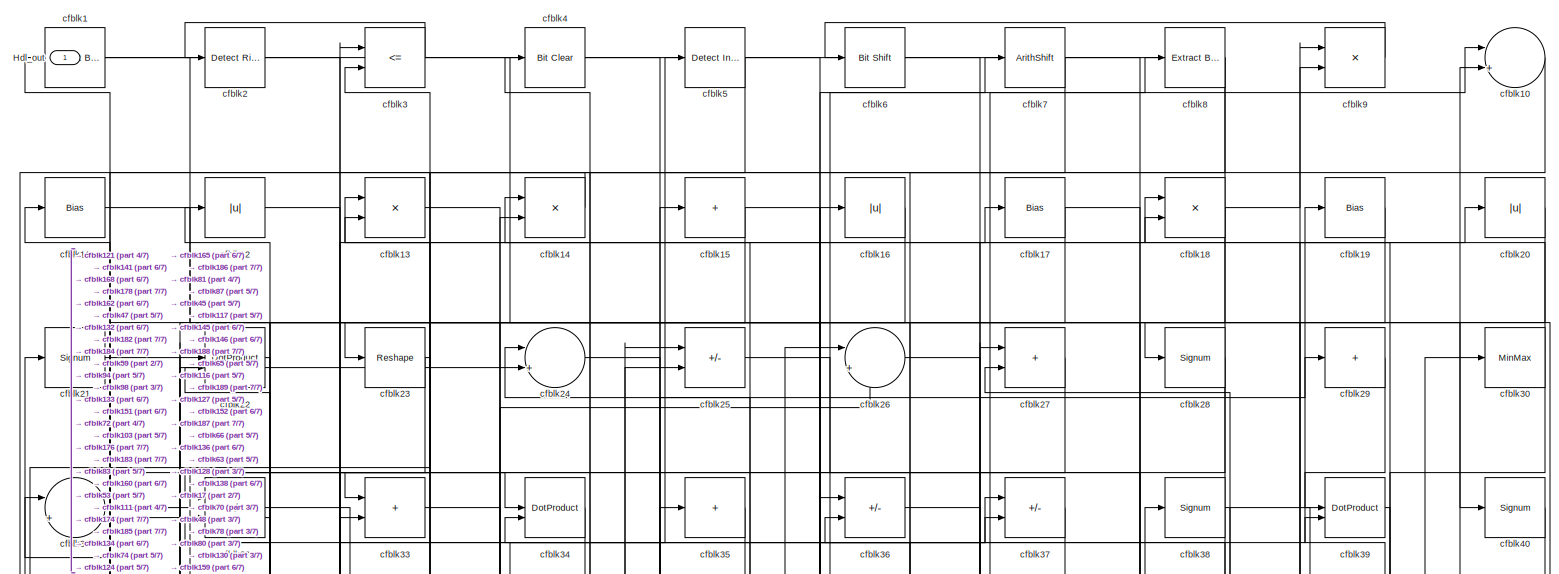
[diagram: root canvas - part 1/7, full width, top band]
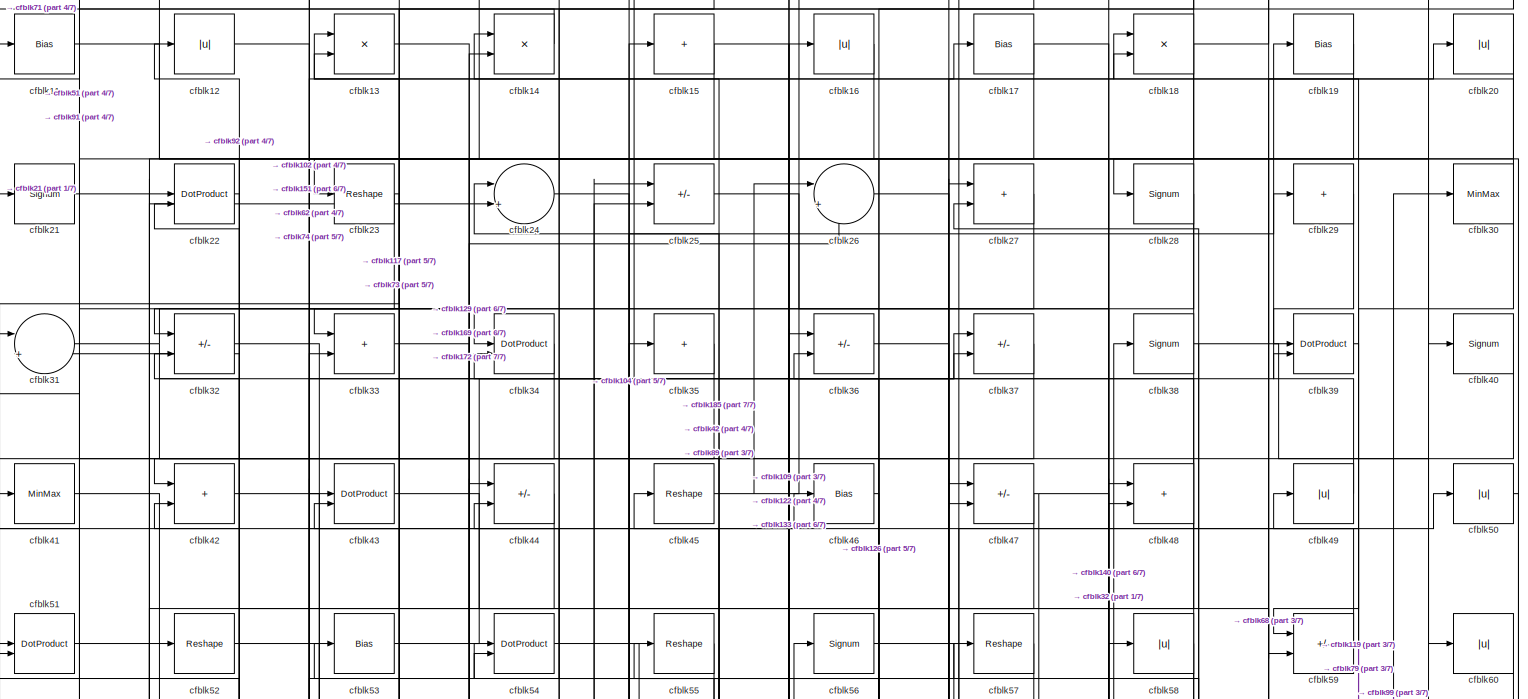
[diagram: root canvas - part 2/7, full width, top band]
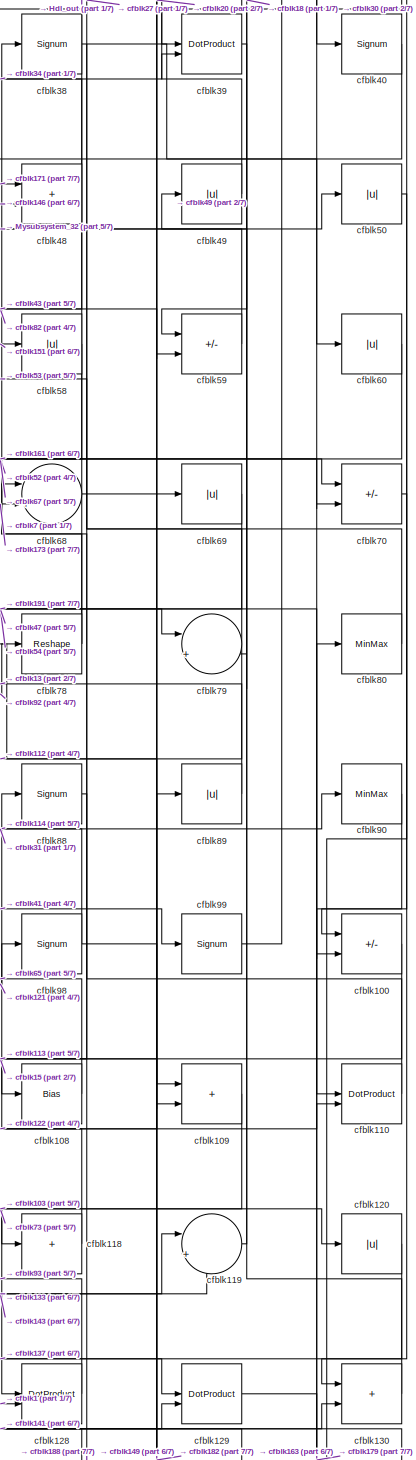
[diagram: root canvas - part 3/7, middle right region]
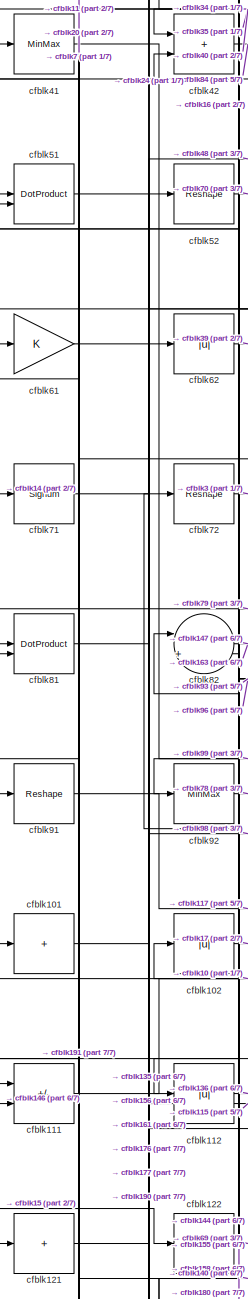
[diagram: root canvas - part 4/7, middle left region]
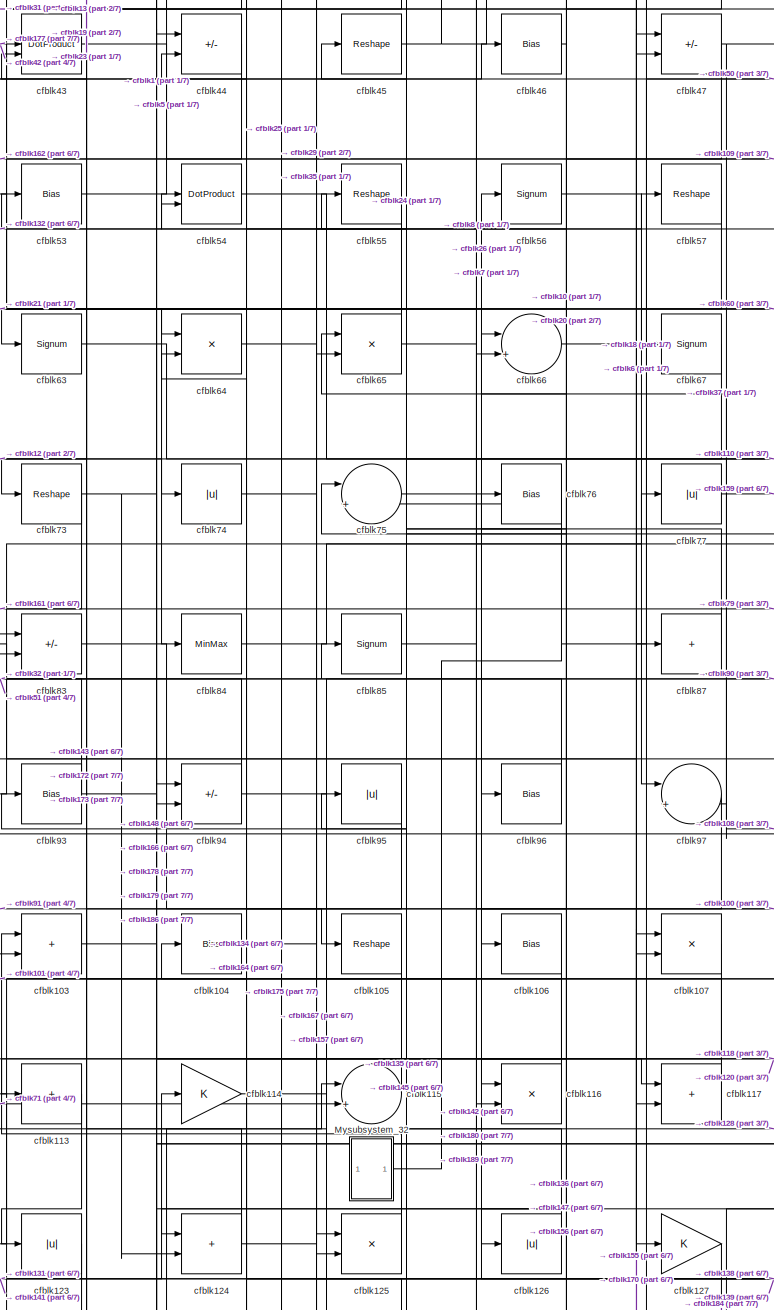
[diagram: root canvas - part 5/7, central region]
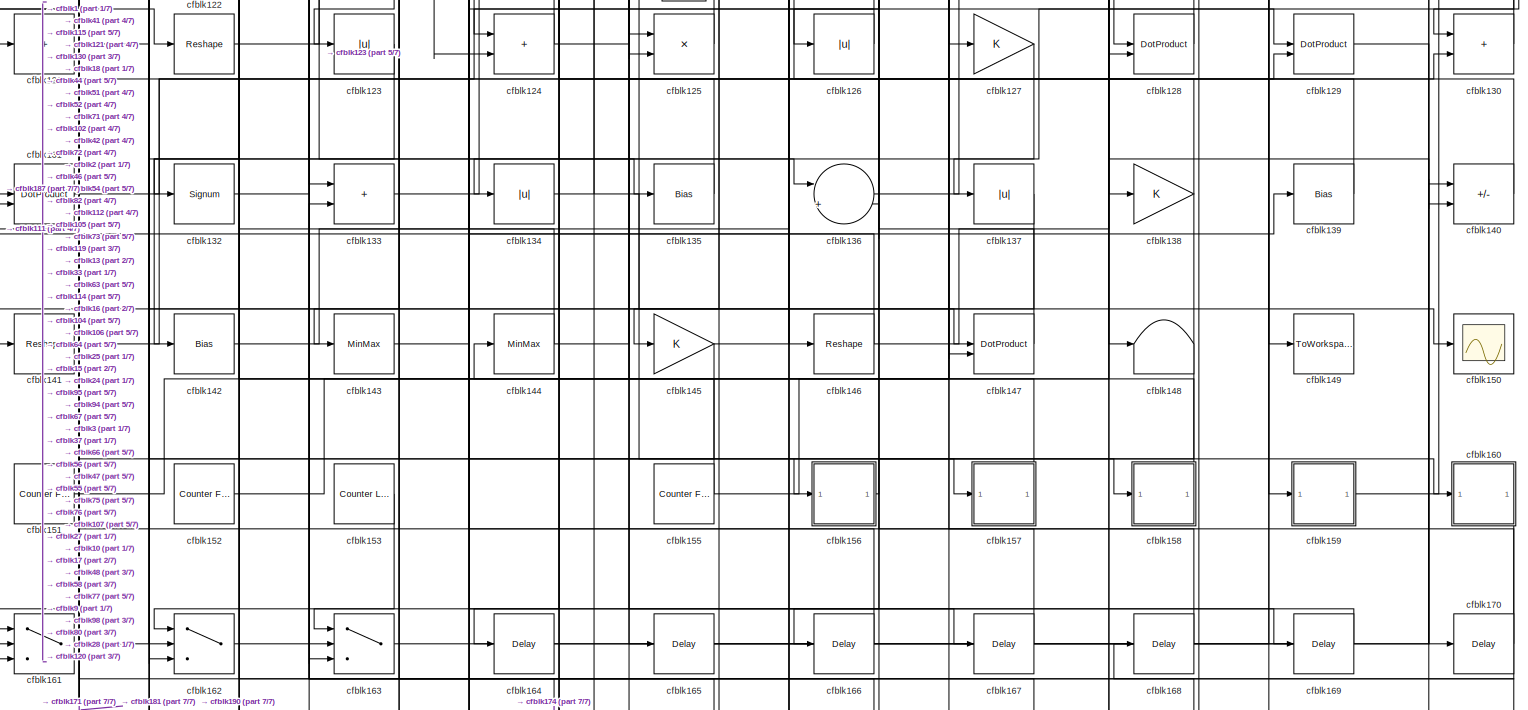
[diagram: root canvas - part 6/7, full width, bottom band]
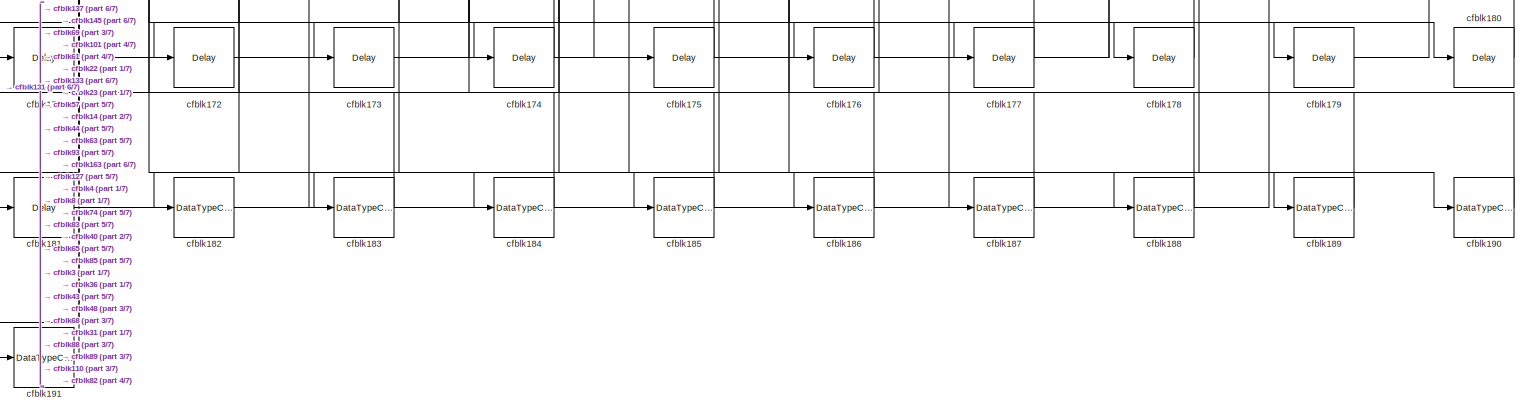
[diagram: root canvas - part 7/7, full width, bottom band]
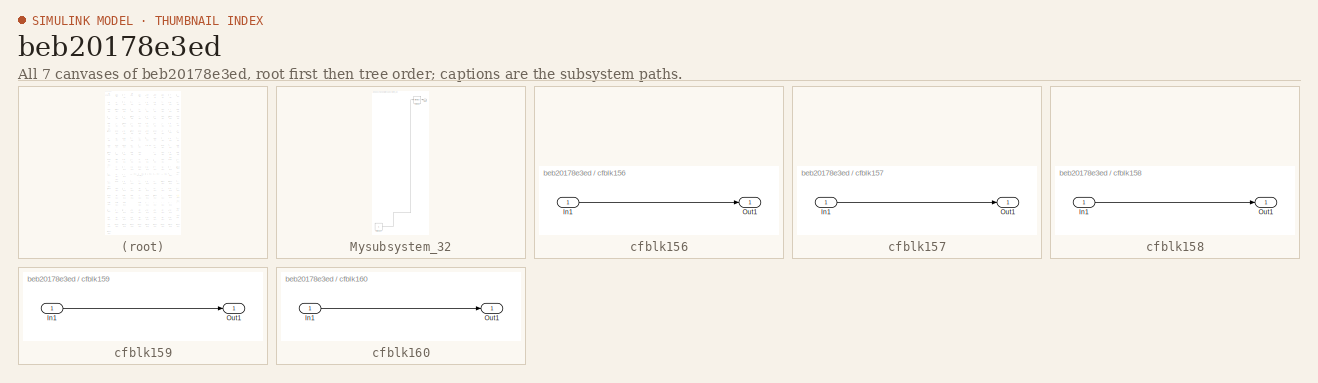
[diagram: thumbnail index - all 7 canvases of the model, root first then tree order]
MODEL slx_beb20178e3ed
KIND model
CONFIG AbsTol = auto
CONFIG EnableMultiTasking = off
CONFIG FixedStep = auto
CONFIG MaxStep = auto
CONFIG MinStep = auto
CONFIG RelTol = 1e-3
CONFIG SampleTimeConstraint = Unconstrained
CONFIG SolverName = VariableStepAuto
CONFIG StartTime = 0.0
CONFIG StopTime = 10.0
BLOCK [Outport] Hdl_out
  OutDataTypeStr = uint8
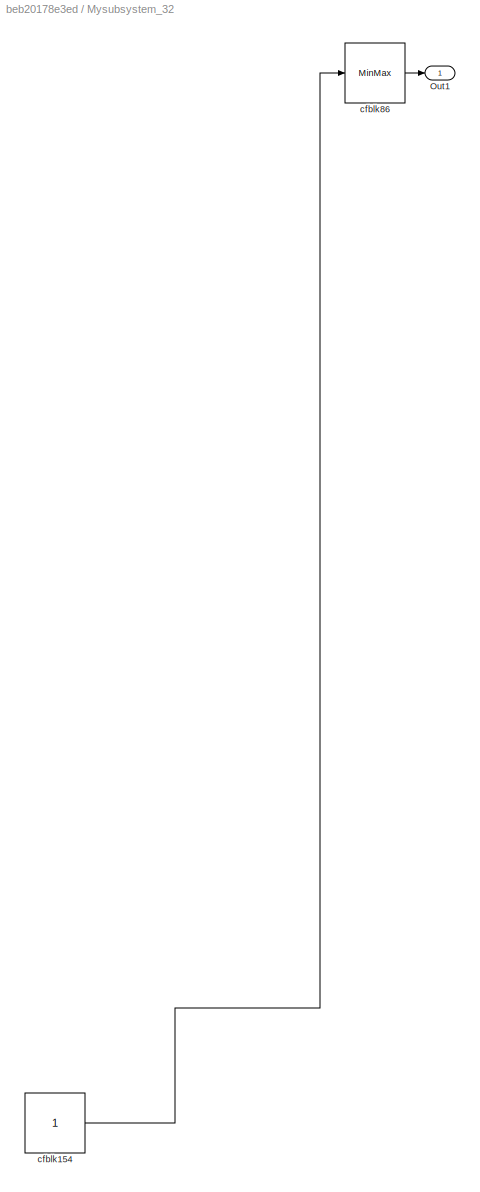
BLOCK [SubSystem] Mysubsystem_32
  RTWFcnName = Mysubsystem_32
  RTWFcnNameOpts = User specified
  RTWFileNameOpts = Use function name
  RTWSystemCode = Reusable function
  TreatAsAtomicUnit = on
BLOCK [Outport] Mysubsystem_32/Out1
BLOCK [Constant] Mysubsystem_32/cfblk154
  SampleTime = -1
BLOCK [MinMax] Mysubsystem_32/cfblk86
BLOCK [Reference] cfblk1  REF=simulink/Logic and Bit
Operations/Extract Bits
  LibrarySourceBlock = hdlsllib/Logic and Bit\nOperations/Extract Bits
  SourceBlock = simulink/Logic and Bit\nOperations/Extract Bits
  SourceType = Extract Bits
BLOCK [Sum] cfblk10
  Inputs = |++
  OutDataTypeStr = uint8
BLOCK [Sum] cfblk100
  IconShape = rectangular
  Inputs = +-
  OutDataTypeStr = uint8
BLOCK [Sum] cfblk101
  IconShape = rectangular
  Inputs = +
  OutDataTypeStr = uint8
BLOCK [Abs] cfblk102
  OutDataTypeStr = uint8
  SaturateOnIntegerOverflow = off
BLOCK [Sum] cfblk103
  IconShape = rectangular
  OutDataTypeStr = uint8
BLOCK [Bias] cfblk104
  Bias = 0.0
  SaturateOnIntegerOverflow = off
BLOCK [Reshape] cfblk105
BLOCK [Bias] cfblk106
  Bias = 0.0
  SaturateOnIntegerOverflow = off
BLOCK [Product] cfblk107
  Inputs = */
  OutDataTypeStr = uint8
  RndMeth = Zero
  SaturateOnIntegerOverflow = on
BLOCK [Bias] cfblk108
  Bias = 0.0
  SaturateOnIntegerOverflow = off
BLOCK [Sum] cfblk109
  IconShape = rectangular
  OutDataTypeStr = uint8
BLOCK [Bias] cfblk11
  Bias = 0.0
  SaturateOnIntegerOverflow = off
BLOCK [DotProduct] cfblk110
  OutDataTypeStr = uint8
BLOCK [Sum] cfblk111
  IconShape = rectangular
  Inputs = +-
  OutDataTypeStr = uint8
BLOCK [Abs] cfblk112
  OutDataTypeStr = uint8
  SaturateOnIntegerOverflow = off
BLOCK [Sum] cfblk113
  IconShape = rectangular
  Inputs = +
  OutDataTypeStr = uint8
BLOCK [Gain] cfblk114
  OutDataTypeStr = uint8
BLOCK [Sum] cfblk115
  Inputs = |++
  OutDataTypeStr = uint8
BLOCK [Product] cfblk116
  Inputs = */
  OutDataTypeStr = uint8
  RndMeth = Zero
  SaturateOnIntegerOverflow = on
BLOCK [Sum] cfblk117
  IconShape = rectangular
  OutDataTypeStr = uint8
BLOCK [Sum] cfblk118
  IconShape = rectangular
  Inputs = +
  OutDataTypeStr = uint8
BLOCK [Sum] cfblk119
  Inputs = |++
  OutDataTypeStr = uint8
BLOCK [Abs] cfblk12
  OutDataTypeStr = uint8
  SaturateOnIntegerOverflow = off
BLOCK [Abs] cfblk120
  OutDataTypeStr = uint8
  SaturateOnIntegerOverflow = off
BLOCK [Sum] cfblk121
  IconShape = rectangular
  Inputs = +
  OutDataTypeStr = uint8
BLOCK [Reshape] cfblk122
BLOCK [Abs] cfblk123
  OutDataTypeStr = uint8
  SaturateOnIntegerOverflow = off
BLOCK [Sum] cfblk124
  IconShape = rectangular
  OutDataTypeStr = uint8
BLOCK [Product] cfblk125
  Inputs = */
  OutDataTypeStr = uint8
  RndMeth = Zero
  SaturateOnIntegerOverflow = on
BLOCK [Abs] cfblk126
  OutDataTypeStr = uint8
  SaturateOnIntegerOverflow = off
BLOCK [Gain] cfblk127
  OutDataTypeStr = uint8
BLOCK [DotProduct] cfblk128
  OutDataTypeStr = uint8
BLOCK [DotProduct] cfblk129
  OutDataTypeStr = uint8
BLOCK [Product] cfblk13
  Inputs = */
  OutDataTypeStr = uint8
  RndMeth = Zero
  SaturateOnIntegerOverflow = on
BLOCK [Sum] cfblk130
  IconShape = rectangular
  OutDataTypeStr = uint8
BLOCK [DotProduct] cfblk131
  OutDataTypeStr = uint8
BLOCK [Signum] cfblk132
BLOCK [Sum] cfblk133
  IconShape = rectangular
  OutDataTypeStr = uint8
BLOCK [Abs] cfblk134
  OutDataTypeStr = uint8
  SaturateOnIntegerOverflow = off
BLOCK [Bias] cfblk135
  Bias = 0.0
  SaturateOnIntegerOverflow = off
BLOCK [Sum] cfblk136
  Inputs = |++
  OutDataTypeStr = uint8
BLOCK [Abs] cfblk137
  OutDataTypeStr = uint8
  SaturateOnIntegerOverflow = off
BLOCK [Gain] cfblk138
  OutDataTypeStr = uint8
BLOCK [Bias] cfblk139
  Bias = 0.0
  SaturateOnIntegerOverflow = off
BLOCK [Product] cfblk14
  Inputs = */
  OutDataTypeStr = uint8
  RndMeth = Zero
  SaturateOnIntegerOverflow = on
BLOCK [Sum] cfblk140
  IconShape = rectangular
  Inputs = +-
  OutDataTypeStr = uint8
BLOCK [Reshape] cfblk141
BLOCK [Bias] cfblk142
  Bias = 0.0
  SaturateOnIntegerOverflow = off
BLOCK [MinMax] cfblk143
  OutDataTypeStr = uint8
BLOCK [MinMax] cfblk144
  OutDataTypeStr = uint8
BLOCK [Gain] cfblk145
  OutDataTypeStr = uint8
BLOCK [Reshape] cfblk146
BLOCK [DotProduct] cfblk147
  OutDataTypeStr = uint8
BLOCK [Terminator] cfblk148
BLOCK [ToWorkspace] cfblk149
  MaxDataPoints = inf
  SampleTime = -1
  SaveFormat = Timeseries
  VariableName = simout
BLOCK [Sum] cfblk15
  IconShape = rectangular
  Inputs = +
  OutDataTypeStr = uint8
BLOCK [Scope] cfblk150
  Floating = off
  NumInputPorts = 1
  ScopeSpecificationString = Simulink.scopes.TimeScopeBlockCfg('CurrentConfiguration', extmgr.ConfigurationSet(extmgr.Configuration('Core','General UI',true),extmgr.Configuration('Core','Source UI',true),extmgr.Configuration('Sources','WiredSimulink',true,'DataLoggingVariableName','ScopeData2','DataLoggingSaveFormat','Array','DataLoggingLimitDataPoints',true,'DataLoggingDecimation','1'),extmgr.Configuration('Visuals','Time Do...<+868ch>
BLOCK [Reference] cfblk151  REF=hdlsllib/Sources/Counter
Free-Running
  SourceBlock = hdlsllib/Sources/Counter\nFree-Running
  SourceType = Counter Free-Running
BLOCK [Reference] cfblk152  REF=hdlsllib/Sources/Counter
Free-Running
  SourceBlock = hdlsllib/Sources/Counter\nFree-Running
  SourceType = Counter Free-Running
BLOCK [Reference] cfblk153  REF=hdlsllib/Sources/Counter
Limited
  SourceBlock = hdlsllib/Sources/Counter\nLimited
  SourceType = Counter Limited
BLOCK [Reference] cfblk155  REF=hdlsllib/Sources/Counter
Free-Running
  SourceBlock = hdlsllib/Sources/Counter\nFree-Running
  SourceType = Counter Free-Running
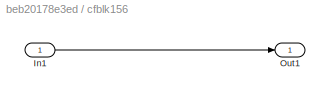
BLOCK [SubSystem] cfblk156
  LibrarySourceBlock = hdlsllib/Ports &\nSubsystems/Subsystem
BLOCK [Inport] cfblk156/In1
BLOCK [Outport] cfblk156/Out1
BLOCK [SubSystem] cfblk157
  LibrarySourceBlock = hdlsllib/Ports &\nSubsystems/Subsystem
BLOCK [Inport] cfblk157/In1
BLOCK [Outport] cfblk157/Out1
BLOCK [SubSystem] cfblk158
  LibrarySourceBlock = hdlsllib/Ports &\nSubsystems/Subsystem
BLOCK [Inport] cfblk158/In1
BLOCK [Outport] cfblk158/Out1
BLOCK [SubSystem] cfblk159
  LibrarySourceBlock = hdlsllib/Ports &\nSubsystems/Subsystem
BLOCK [Inport] cfblk159/In1
BLOCK [Outport] cfblk159/Out1
BLOCK [Abs] cfblk16
  OutDataTypeStr = uint8
  SaturateOnIntegerOverflow = off
BLOCK [SubSystem] cfblk160
  LibrarySourceBlock = hdlsllib/Ports &\nSubsystems/Subsystem
BLOCK [Inport] cfblk160/In1
BLOCK [Outport] cfblk160/Out1
BLOCK [Switch] cfblk161
  InputSameDT = off
  OutDataTypeStr = uint8
  SaturateOnIntegerOverflow = off
BLOCK [Switch] cfblk162
  InputSameDT = off
  OutDataTypeStr = uint8
  SaturateOnIntegerOverflow = off
BLOCK [Switch] cfblk163
  InputSameDT = off
  OutDataTypeStr = uint8
  SaturateOnIntegerOverflow = off
BLOCK [Delay] cfblk164
  InputPortMap = u0
  SampleTime = 1
BLOCK [Delay] cfblk165
  InputPortMap = u0
  SampleTime = 1
BLOCK [Delay] cfblk166
  InputPortMap = u0
  SampleTime = 1
BLOCK [Delay] cfblk167
  InputPortMap = u0
  SampleTime = 1
BLOCK [Delay] cfblk168
  InputPortMap = u0
  SampleTime = 1
BLOCK [Delay] cfblk169
  InputPortMap = u0
  SampleTime = 1
BLOCK [Bias] cfblk17
  Bias = 0.0
  SaturateOnIntegerOverflow = off
BLOCK [Delay] cfblk170
  InputPortMap = u0
  SampleTime = 1
BLOCK [Delay] cfblk171
  InputPortMap = u0
  SampleTime = 1
BLOCK [Delay] cfblk172
  InputPortMap = u0
  SampleTime = 1
BLOCK [Delay] cfblk173
  InputPortMap = u0
  SampleTime = 1
BLOCK [Delay] cfblk174
  InputPortMap = u0
  SampleTime = 1
BLOCK [Delay] cfblk175
  InputPortMap = u0
  SampleTime = 1
BLOCK [Delay] cfblk176
  InputPortMap = u0
  SampleTime = 1
BLOCK [Delay] cfblk177
  InputPortMap = u0
  SampleTime = 1
BLOCK [Delay] cfblk178
  InputPortMap = u0
  SampleTime = 1
BLOCK [Delay] cfblk179
  InputPortMap = u0
  SampleTime = 1
BLOCK [Product] cfblk18
  Inputs = */
  OutDataTypeStr = uint8
  RndMeth = Zero
  SaturateOnIntegerOverflow = on
BLOCK [Delay] cfblk180
  InputPortMap = u0
  SampleTime = 1
BLOCK [Delay] cfblk181
  InputPortMap = u0
  SampleTime = 1
BLOCK [DataTypeConversion] cfblk182
  OutDataTypeStr = uint8
  RndMeth = Floor
  SaturateOnIntegerOverflow = off
BLOCK [DataTypeConversion] cfblk183
  OutDataTypeStr = uint8
  RndMeth = Floor
  SaturateOnIntegerOverflow = off
BLOCK [DataTypeConversion] cfblk184
  OutDataTypeStr = uint8
  RndMeth = Floor
  SaturateOnIntegerOverflow = off
BLOCK [DataTypeConversion] cfblk185
  OutDataTypeStr = uint8
  RndMeth = Floor
  SaturateOnIntegerOverflow = off
BLOCK [DataTypeConversion] cfblk186
  OutDataTypeStr = uint8
  RndMeth = Floor
  SaturateOnIntegerOverflow = off
BLOCK [DataTypeConversion] cfblk187
  OutDataTypeStr = uint8
  RndMeth = Floor
  SaturateOnIntegerOverflow = off
BLOCK [DataTypeConversion] cfblk188
  OutDataTypeStr = uint8
  RndMeth = Floor
  SaturateOnIntegerOverflow = off
BLOCK [DataTypeConversion] cfblk189
  OutDataTypeStr = uint8
  RndMeth = Floor
  SaturateOnIntegerOverflow = off
BLOCK [Bias] cfblk19
  Bias = 0.0
  SaturateOnIntegerOverflow = off
BLOCK [DataTypeConversion] cfblk190
  OutDataTypeStr = uint8
  RndMeth = Floor
  SaturateOnIntegerOverflow = off
BLOCK [DataTypeConversion] cfblk191
  OutDataTypeStr = uint8
  RndMeth = Floor
  SaturateOnIntegerOverflow = off
BLOCK [Reference] cfblk2  REF=hdlsllib/Logic and Bit
Operations/Detect Rise
Nonnegative
  SourceBlock = hdlsllib/Logic and Bit\nOperations/Detect Rise\nNonnegative
  SourceType = Detect Rise Nonnegative
BLOCK [Abs] cfblk20
  OutDataTypeStr = uint8
  SaturateOnIntegerOverflow = off
BLOCK [Signum] cfblk21
BLOCK [DotProduct] cfblk22
  OutDataTypeStr = uint8
BLOCK [Reshape] cfblk23
BLOCK [Sum] cfblk24
  Inputs = |++
  OutDataTypeStr = uint8
BLOCK [Sum] cfblk25
  IconShape = rectangular
  Inputs = +-
  OutDataTypeStr = uint8
BLOCK [Sum] cfblk26
  Inputs = |++
  OutDataTypeStr = uint8
BLOCK [Sum] cfblk27
  IconShape = rectangular
  OutDataTypeStr = uint8
BLOCK [Signum] cfblk28
BLOCK [Sum] cfblk29
  IconShape = rectangular
  Inputs = +
  OutDataTypeStr = uint8
BLOCK [RelationalOperator] cfblk3
  InputSameDT = off
  Operator = <=
  OutDataTypeStr = boolean
BLOCK [MinMax] cfblk30
  OutDataTypeStr = uint8
BLOCK [Sum] cfblk31
  Inputs = |++
  OutDataTypeStr = uint8
BLOCK [Sum] cfblk32
  IconShape = rectangular
  Inputs = +-
  OutDataTypeStr = uint8
BLOCK [Sum] cfblk33
  IconShape = rectangular
  OutDataTypeStr = uint8
BLOCK [DotProduct] cfblk34
  OutDataTypeStr = uint8
BLOCK [Sum] cfblk35
  IconShape = rectangular
  Inputs = +
  OutDataTypeStr = uint8
BLOCK [Sum] cfblk36
  IconShape = rectangular
  Inputs = +-
  OutDataTypeStr = uint8
BLOCK [Sum] cfblk37
  IconShape = rectangular
  Inputs = +-
  OutDataTypeStr = uint8
BLOCK [Signum] cfblk38
BLOCK [DotProduct] cfblk39
  OutDataTypeStr = uint8
BLOCK [Reference] cfblk4  REF=simulink/Logic and Bit
Operations/Bit Clear
  LibrarySourceBlock = hdlsllib/Logic and Bit\nOperations/Bit Clear
  SourceBlock = simulink/Logic and Bit\nOperations/Bit Clear
  SourceType = Bit Clear
BLOCK [Signum] cfblk40
BLOCK [MinMax] cfblk41
  OutDataTypeStr = uint8
BLOCK [Sum] cfblk42
  IconShape = rectangular
  OutDataTypeStr = uint8
BLOCK [DotProduct] cfblk43
  OutDataTypeStr = uint8
BLOCK [Sum] cfblk44
  IconShape = rectangular
  Inputs = +-
  OutDataTypeStr = uint8
BLOCK [Reshape] cfblk45
BLOCK [Bias] cfblk46
  Bias = 0.0
  SaturateOnIntegerOverflow = off
BLOCK [Sum] cfblk47
  IconShape = rectangular
  Inputs = +-
  OutDataTypeStr = uint8
BLOCK [Sum] cfblk48
  IconShape = rectangular
  OutDataTypeStr = uint8
BLOCK [Abs] cfblk49
  OutDataTypeStr = uint8
  SaturateOnIntegerOverflow = off
BLOCK [Reference] cfblk5  REF=simulink/Logic and Bit
Operations/Detect
Increase
  LibrarySourceBlock = hdlsllib/Logic and Bit\nOperations/Detect\nIncrease
  SourceBlock = simulink/Logic and Bit\nOperations/Detect\nIncrease
  SourceType = Detect Increase
BLOCK [Abs] cfblk50
  OutDataTypeStr = uint8
  SaturateOnIntegerOverflow = off
BLOCK [DotProduct] cfblk51
  OutDataTypeStr = uint8
BLOCK [Reshape] cfblk52
BLOCK [Bias] cfblk53
  Bias = 0.0
  SaturateOnIntegerOverflow = off
BLOCK [DotProduct] cfblk54
  OutDataTypeStr = uint8
BLOCK [Reshape] cfblk55
BLOCK [Signum] cfblk56
BLOCK [Reshape] cfblk57
BLOCK [Abs] cfblk58
  OutDataTypeStr = uint8
  SaturateOnIntegerOverflow = off
BLOCK [Sum] cfblk59
  IconShape = rectangular
  Inputs = +-
  OutDataTypeStr = uint8
BLOCK [Reference] cfblk6  REF=hdlsllib/Logic and Bit
Operations/Bit Shift
  SourceBlock = hdlsllib/Logic and Bit\nOperations/Bit Shift
  SourceType = Bit Shift
BLOCK [Abs] cfblk60
  OutDataTypeStr = uint8
  SaturateOnIntegerOverflow = off
BLOCK [Gain] cfblk61
  OutDataTypeStr = uint8
BLOCK [Abs] cfblk62
  OutDataTypeStr = uint8
  SaturateOnIntegerOverflow = off
BLOCK [Signum] cfblk63
BLOCK [Product] cfblk64
  Inputs = */
  OutDataTypeStr = uint8
  RndMeth = Zero
  SaturateOnIntegerOverflow = on
BLOCK [Product] cfblk65
  Inputs = */
  OutDataTypeStr = uint8
  RndMeth = Zero
  SaturateOnIntegerOverflow = on
BLOCK [Sum] cfblk66
  Inputs = |++
  OutDataTypeStr = uint8
BLOCK [Signum] cfblk67
BLOCK [Sum] cfblk68
  Inputs = |++
  OutDataTypeStr = uint8
BLOCK [Abs] cfblk69
  OutDataTypeStr = uint8
  SaturateOnIntegerOverflow = off
BLOCK [ArithShift] cfblk7
  BitShiftNumber = 8
  InputPortMap = u0
BLOCK [Sum] cfblk70
  IconShape = rectangular
  Inputs = +-
  OutDataTypeStr = uint8
BLOCK [Signum] cfblk71
BLOCK [Reshape] cfblk72
BLOCK [Reshape] cfblk73
BLOCK [Abs] cfblk74
  OutDataTypeStr = uint8
  SaturateOnIntegerOverflow = off
BLOCK [Sum] cfblk75
  Inputs = |++
  OutDataTypeStr = uint8
BLOCK [Bias] cfblk76
  Bias = 0.0
  SaturateOnIntegerOverflow = off
BLOCK [Abs] cfblk77
  OutDataTypeStr = uint8
  SaturateOnIntegerOverflow = off
BLOCK [Reshape] cfblk78
BLOCK [Sum] cfblk79
  Inputs = |++
  OutDataTypeStr = uint8
BLOCK [Reference] cfblk8  REF=simulink/Logic and Bit
Operations/Extract Bits
  LibrarySourceBlock = hdlsllib/Logic and Bit\nOperations/Extract Bits
  SourceBlock = simulink/Logic and Bit\nOperations/Extract Bits
  SourceType = Extract Bits
BLOCK [MinMax] cfblk80
  OutDataTypeStr = uint8
BLOCK [DotProduct] cfblk81
  OutDataTypeStr = uint8
BLOCK [Sum] cfblk82
  Inputs = |++
  OutDataTypeStr = uint8
BLOCK [Sum] cfblk83
  IconShape = rectangular
  Inputs = +-
  OutDataTypeStr = uint8
BLOCK [MinMax] cfblk84
  OutDataTypeStr = uint8
BLOCK [Signum] cfblk85
BLOCK [Sum] cfblk87
  IconShape = rectangular
  Inputs = +
  OutDataTypeStr = uint8
BLOCK [Signum] cfblk88
BLOCK [Abs] cfblk89
  OutDataTypeStr = uint8
  SaturateOnIntegerOverflow = off
BLOCK [Product] cfblk9
  Inputs = */
  OutDataTypeStr = uint8
  RndMeth = Zero
  SaturateOnIntegerOverflow = on
BLOCK [MinMax] cfblk90
  OutDataTypeStr = uint8
BLOCK [Reshape] cfblk91
BLOCK [MinMax] cfblk92
  OutDataTypeStr = uint8
BLOCK [Bias] cfblk93
  Bias = 0.0
  SaturateOnIntegerOverflow = off
BLOCK [Sum] cfblk94
  IconShape = rectangular
  Inputs = +-
  OutDataTypeStr = uint8
BLOCK [Abs] cfblk95
  OutDataTypeStr = uint8
  SaturateOnIntegerOverflow = off
BLOCK [Bias] cfblk96
  Bias = 0.0
  SaturateOnIntegerOverflow = off
BLOCK [Sum] cfblk97
  Inputs = |++
  OutDataTypeStr = uint8
BLOCK [Signum] cfblk98
BLOCK [Signum] cfblk99
LINE Mysubsystem_32/cfblk154:1 -> Mysubsystem_32/cfblk86:1
LINE Mysubsystem_32/cfblk86:1 -> Mysubsystem_32/Out1:1
NET Mysubsystem_32:1 -> cfblk50:1, cfblk54:2
LINE cfblk100:1 -> cfblk113:1
NET cfblk101:1 -> cfblk176:1, cfblk177:1, cfblk62:1
LINE cfblk102:1 -> cfblk17:1
LINE cfblk103:1 -> cfblk118:1
NET cfblk104:1 -> cfblk29:1, cfblk57:1
LINE cfblk105:1 -> cfblk143:1
LINE cfblk106:1 -> cfblk134:1
LINE cfblk107:1 -> cfblk161:3
LINE cfblk108:1 -> cfblk65:1
LINE cfblk109:1 -> cfblk128:1
LINE cfblk10:1 -> cfblk116:1
LINE cfblk110:1 -> cfblk68:1
LINE cfblk111:1 -> cfblk10:2
LINE cfblk112:1 -> cfblk136:1
LINE cfblk113:1 -> cfblk123:1
LINE cfblk114:1 -> cfblk90:1
LINE cfblk115:1 -> cfblk101:1
LINE cfblk116:1 -> cfblk95:1
LINE cfblk117:1 -> cfblk13:2
LINE cfblk118:1 -> cfblk88:1
LINE cfblk119:1 -> cfblk49:1
NET cfblk11:1 -> cfblk40:1, cfblk59:2
LINE cfblk120:1 -> cfblk137:1
NET cfblk121:1 -> cfblk147:1, cfblk98:1
LINE cfblk122:1 -> cfblk69:1
LINE cfblk123:1 -> cfblk142:1
NET cfblk124:1 -> cfblk35:1, cfblk43:2
LINE cfblk125:1 -> cfblk103:1
NET cfblk126:1 -> cfblk124:1, cfblk45:1
LINE cfblk127:1 -> cfblk184:1
LINE cfblk128:1 -> cfblk93:1
LINE cfblk129:1 -> cfblk170:1
LINE cfblk12:1 -> cfblk74:1
LINE cfblk130:1 -> cfblk18:2
LINE cfblk131:1 -> cfblk114:1
LINE cfblk132:1 -> cfblk54:1
NET cfblk133:1 -> cfblk119:1, cfblk16:1
NET cfblk134:1 -> cfblk150:1, cfblk25:2
LINE cfblk135:1 -> cfblk104:1
LINE cfblk136:1 -> cfblk10:1
LINE cfblk137:1 -> cfblk171:1
NET cfblk138:1 -> cfblk166:1, cfblk64:2
LINE cfblk139:1 -> cfblk56:1
NET cfblk13:1 -> cfblk129:1, cfblk169:1
LINE cfblk140:1 -> cfblk41:1
NET cfblk141:1 -> cfblk115:1, cfblk130:2
LINE cfblk142:1 -> cfblk66:2
NET cfblk143:1 -> cfblk119:2, cfblk139:1
NET cfblk144:1 -> cfblk102:1, cfblk129:2
NET cfblk145:1 -> cfblk181:1, cfblk37:1
NET cfblk146:1 -> cfblk111:2, cfblk48:2
NET cfblk147:1 -> cfblk55:1, cfblk75:1
LINE cfblk14:1 -> cfblk71:1
NET cfblk151:1 -> cfblk15:1, cfblk33:2, cfblk58:1
LINE cfblk152:1 -> cfblk27:1
LINE cfblk153:1 -> cfblk162:1
NET cfblk155:1 -> cfblk107:1, cfblk42:2
LINE cfblk156/In1:1 -> cfblk156/Out1:1
LINE cfblk156:1 -> cfblk76:1
LINE cfblk157/In1:1 -> cfblk157/Out1:1
LINE cfblk157:1 -> cfblk144:1
LINE cfblk158/In1:1 -> cfblk158/Out1:1
LINE cfblk158:1 -> cfblk72:1
LINE cfblk159/In1:1 -> cfblk159/Out1:1
LINE cfblk159:1 -> cfblk28:1
NET cfblk15:1 -> cfblk109:2, cfblk122:1
LINE cfblk160/In1:1 -> cfblk160/Out1:1
LINE cfblk160:1 -> cfblk168:1
LINE cfblk161:1 -> cfblk52:1
LINE cfblk162:1 -> cfblk46:1
LINE cfblk163:1 -> cfblk80:1
LINE cfblk164:1 -> cfblk140:1
LINE cfblk165:1 -> cfblk9:1
LINE cfblk166:1 -> cfblk94:1
LINE cfblk167:1 -> cfblk66:1
LINE cfblk168:1 -> cfblk1:1
LINE cfblk169:1 -> cfblk163:1
LINE cfblk16:1 -> cfblk92:1
LINE cfblk170:1 -> cfblk47:1
LINE cfblk171:1 -> cfblk48:1
LINE cfblk172:1 -> cfblk14:2
LINE cfblk173:1 -> cfblk68:2
LINE cfblk174:1 -> cfblk163:2
LINE cfblk175:1 -> cfblk83:1
LINE cfblk176:1 -> cfblk3:2
LINE cfblk177:1 -> cfblk43:1
LINE cfblk178:1 -> cfblk31:1
LINE cfblk179:1 -> cfblk110:2
NET cfblk17:1 -> cfblk140:2, cfblk32:1
LINE cfblk180:1 -> cfblk82:1
LINE cfblk181:1 -> cfblk133:2
LINE cfblk182:1 -> cfblk89:1
LINE cfblk183:1 -> cfblk22:1
LINE cfblk184:1 -> cfblk22:2
LINE cfblk185:1 -> cfblk4:1
LINE cfblk186:1 -> cfblk44:1
LINE cfblk187:1 -> cfblk131:1
LINE cfblk188:1 -> cfblk36:1
LINE cfblk189:1 -> cfblk36:2
NET cfblk18:1 -> cfblk162:3, cfblk9:2
LINE cfblk190:1 -> cfblk131:2
LINE cfblk191:1 -> cfblk61:1
LINE cfblk19:1 -> cfblk73:1
NET cfblk1:1 -> cfblk128:2, cfblk94:2
NET cfblk20:1 -> cfblk126:1, cfblk91:1
LINE cfblk21:1 -> cfblk65:2
LINE cfblk22:1 -> cfblk182:1
NET cfblk23:1 -> cfblk103:2, cfblk183:1, cfblk83:2
LINE cfblk24:1 -> cfblk165:1
LINE cfblk25:1 -> cfblk138:1
LINE cfblk26:1 -> cfblk127:1
LINE cfblk27:1 -> cfblk132:1
LINE cfblk28:1 -> cfblk141:1
LINE cfblk29:1 -> cfblk39:1
LINE cfblk2:1 -> cfblk133:1
NET cfblk30:1 -> cfblk14:1, cfblk79:2
NET cfblk31:1 -> cfblk34:1, cfblk37:2, cfblk47:2
LINE cfblk32:1 -> cfblk116:2
LINE cfblk33:1 -> cfblk160:1
LINE cfblk34:1 -> cfblk111:1
LINE cfblk35:1 -> cfblk81:2
LINE cfblk36:1 -> cfblk187:1
LINE cfblk37:1 -> cfblk63:1
NET cfblk38:1 -> cfblk108:1, cfblk60:1
LINE cfblk39:1 -> cfblk59:1
NET cfblk3:1 -> cfblk146:1, cfblk2:1
NET cfblk40:1 -> cfblk185:1, cfblk42:1
LINE cfblk41:1 -> cfblk99:1
LINE cfblk42:1 -> cfblk84:1
LINE cfblk43:1 -> cfblk109:1
LINE cfblk44:1 -> cfblk162:2
NET cfblk45:1 -> cfblk26:1, cfblk7:1
LINE cfblk46:1 -> cfblk106:1
NET cfblk47:1 -> cfblk136:2, cfblk79:1, cfblk97:2
NET cfblk48:1 -> cfblk34:2, cfblk82:2
LINE cfblk49:1 -> cfblk19:1
LINE cfblk4:1 -> cfblk186:1
LINE cfblk50:1 -> cfblk130:1
NET cfblk51:1 -> cfblk11:1, cfblk135:1, cfblk81:1
LINE cfblk52:1 -> cfblk70:1
NET cfblk53:1 -> cfblk26:2, cfblk5:1
LINE cfblk54:1 -> cfblk110:1
LINE cfblk55:1 -> cfblk64:1
LINE cfblk56:1 -> cfblk97:1
NET cfblk57:1 -> cfblk172:1, cfblk173:1
LINE cfblk58:1 -> cfblk161:2
NET cfblk59:1 -> cfblk12:1, cfblk21:1
NET cfblk5:1 -> cfblk117:1, cfblk23:1
LINE cfblk60:1 -> cfblk67:1
LINE cfblk61:1 -> cfblk190:1
LINE cfblk62:1 -> cfblk39:2
NET cfblk63:1 -> cfblk148:1, cfblk179:1
LINE cfblk64:1 -> cfblk167:1
NET cfblk65:1 -> cfblk189:1, cfblk44:2, cfblk8:1
LINE cfblk66:1 -> cfblk18:1
LINE cfblk67:1 -> cfblk145:1
LINE cfblk68:1 -> cfblk20:1
LINE cfblk69:1 -> cfblk191:1
LINE cfblk6:1 -> cfblk87:1
LINE cfblk70:1 -> cfblk100:1
NET cfblk71:1 -> cfblk115:2, cfblk156:1, cfblk158:1
LINE cfblk72:1 -> cfblk3:1
NET cfblk73:1 -> cfblk120:1, cfblk124:2, cfblk161:1
NET cfblk74:1 -> cfblk125:1, cfblk175:1, cfblk25:1
LINE cfblk75:1 -> cfblk96:1
LINE cfblk76:1 -> cfblk75:2
LINE cfblk77:1 -> cfblk159:1
NET cfblk78:1 -> Hdl_out:1, cfblk38:1
NET cfblk79:1 -> cfblk112:1, cfblk53:1
NET cfblk7:1 -> cfblk121:1, cfblk33:1, cfblk70:2
LINE cfblk80:1 -> cfblk27:2
LINE cfblk81:1 -> cfblk24:2
NET cfblk82:1 -> cfblk147:2, cfblk163:3
LINE cfblk83:1 -> cfblk105:1
LINE cfblk84:1 -> cfblk77:1
LINE cfblk85:1 -> cfblk180:1
LINE cfblk87:1 -> cfblk24:1
LINE cfblk88:1 -> cfblk188:1
LINE cfblk89:1 -> cfblk13:1
LINE cfblk8:1 -> cfblk174:1
LINE cfblk90:1 -> cfblk100:2
LINE cfblk91:1 -> cfblk117:2
LINE cfblk92:1 -> cfblk78:1
NET cfblk93:1 -> cfblk178:1, cfblk51:2
NET cfblk94:1 -> cfblk157:1, cfblk32:2
NET cfblk95:1 -> cfblk125:2, cfblk164:1
NET cfblk96:1 -> cfblk51:1, cfblk85:1
LINE cfblk97:1 -> cfblk107:2
NET cfblk98:1 -> cfblk149:1, cfblk31:2
LINE cfblk99:1 -> cfblk30:1
LINE cfblk9:1 -> cfblk6:1
note: NET lines group one-source signal fan-out (src -> all destinations, sorted); 1:1 wires keep LINE
